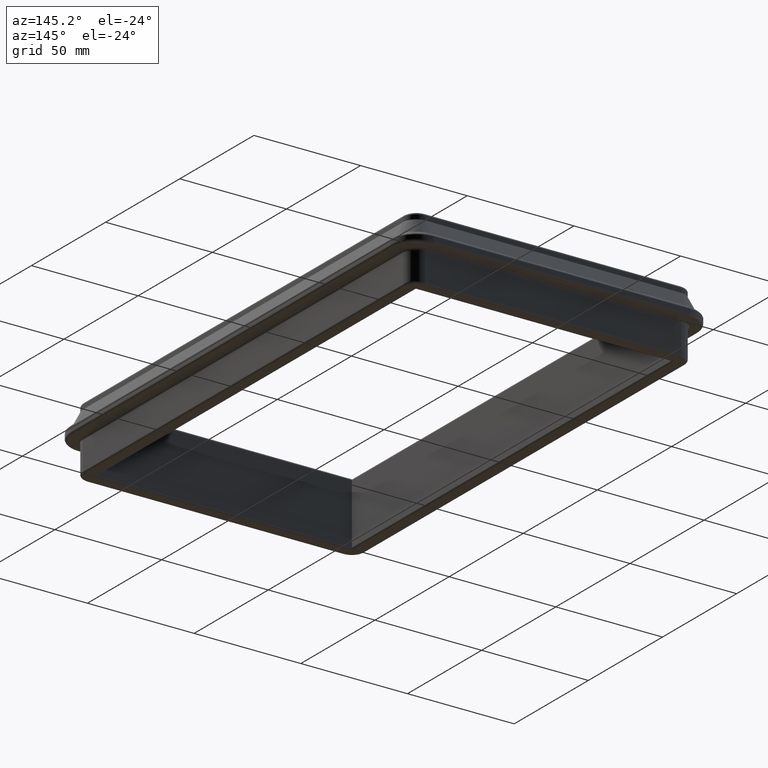
[diagram: clean part render]
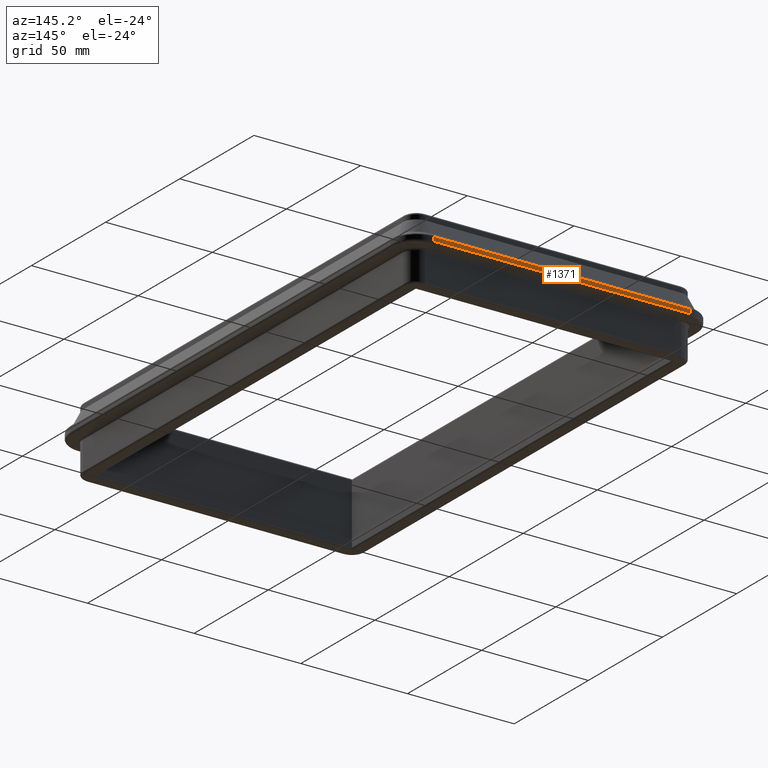
[diagram: same view with one face highlighted and labeled with its STEP entity id]
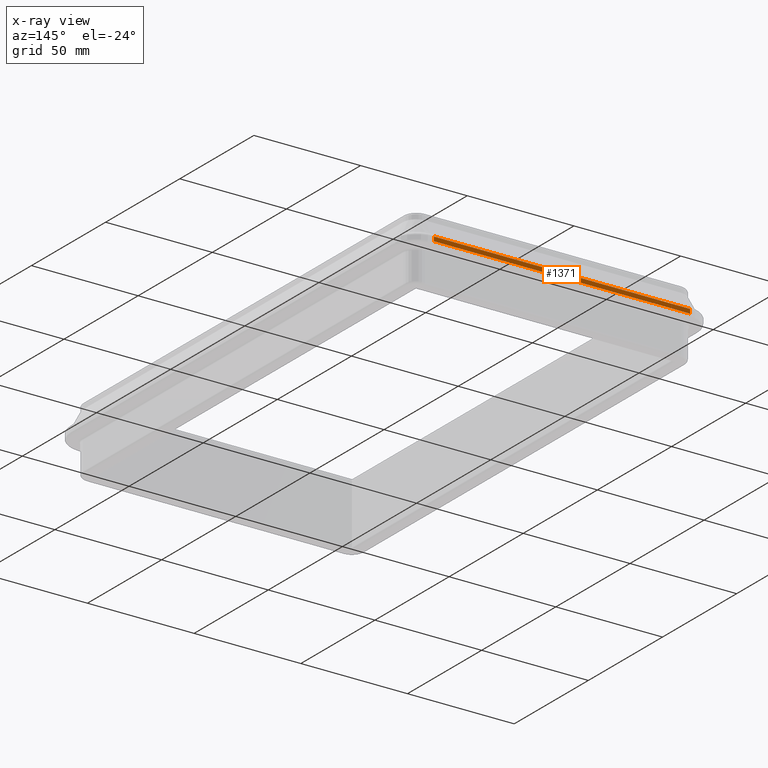
[diagram: x-ray of the same camera — body ghosted, the highlighted face saturated]
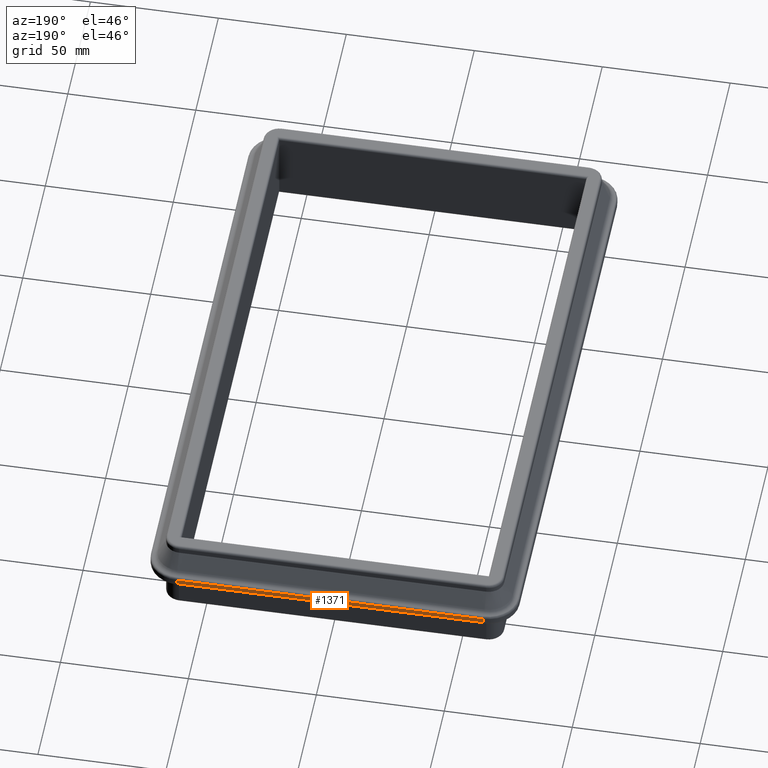
[diagram: same view with one face highlighted and labeled with its STEP entity id]
A machine part, auxiliary view. The second image highlights one B-rep face of the part: STEP entity #1371.
The next image is the same camera in x-ray: the body ghosted, the highlighted face saturated — about 0% of this face is hidden behind the body in this view.
A second angle (auxiliary view) of the same face is appended — the face is thin or edge-on in the first view.
In plain terms, the highlighted planar face has unit normal (-0, 1, 0).
Its self-contained STEP definition (entity closure, byte-faithful):
#31=PLANE('',#1545);
#114=FACE_OUTER_BOUND('',#210,.T.);
#210=EDGE_LOOP('',(#1042,#1043,#1044,#1045));
#307=LINE('',#2333,#407);
#310=LINE('',#2350,#410);
#311=LINE('',#2351,#411);
#312=LINE('',#2352,#412);
#407=VECTOR('',#1861,10.);
#410=VECTOR('',#1884,10.);
#411=VECTOR('',#1885,10.);
#412=VECTOR('',#1886,10.);
#583=VERTEX_POINT('',#2200);
#624=VERTEX_POINT('',#2327);
#625=VERTEX_POINT('',#2331);
#629=VERTEX_POINT('',#2349);
#769=EDGE_CURVE('',#624,#625,#307,.T.);
#777=EDGE_CURVE('',#624,#629,#310,.T.);
#778=EDGE_CURVE('',#583,#629,#311,.T.);
#779=EDGE_CURVE('',#625,#583,#312,.T.);
#1042=ORIENTED_EDGE('',*,*,#769,.F.);
#1043=ORIENTED_EDGE('',*,*,#777,.T.);
#1044=ORIENTED_EDGE('',*,*,#778,.F.);
#1045=ORIENTED_EDGE('',*,*,#779,.F.);
#1371=ADVANCED_FACE('',(#114),#31,.T.);
#1545=AXIS2_PLACEMENT_3D('',#2348,#1882,#1883);
#1861=DIRECTION('',(1.,1.48029736616688E-16,0.));
#1882=DIRECTION('center_axis',(-1.48029736616688E-16,1.,2.22044604925031E-15));
#1883=DIRECTION('ref_axis',(1.35963107344689E-31,-2.22044604925031E-15,
1.));
#1884=DIRECTION('',(1.35963107344689E-31,-2.22044604925031E-15,1.));
#1885=DIRECTION('',(-1.,-1.48029736616688E-16,0.));
#1886=DIRECTION('',(1.35963107344689E-31,-2.22044604925031E-15,1.));
#2200=CARTESIAN_POINT('',(60.,120.,3.));
#2327=CARTESIAN_POINT('',(-60.,120.,0.999999999999994));
#2331=CARTESIAN_POINT('',(60.,120.,0.999999999999996));
#2333=CARTESIAN_POINT('',(-63.,120.,0.999999999999996));
#2348=CARTESIAN_POINT('Origin',(-60.,120.,-1.81832464468822E-15));
#2349=CARTESIAN_POINT('',(-60.,120.,3.));
#2350=CARTESIAN_POINT('',(-60.,120.,-1.81832464468822E-15));
#2351=CARTESIAN_POINT('',(-66.,120.,3.));
#2352=CARTESIAN_POINT('',(60.,120.,-1.81832464468822E-15));